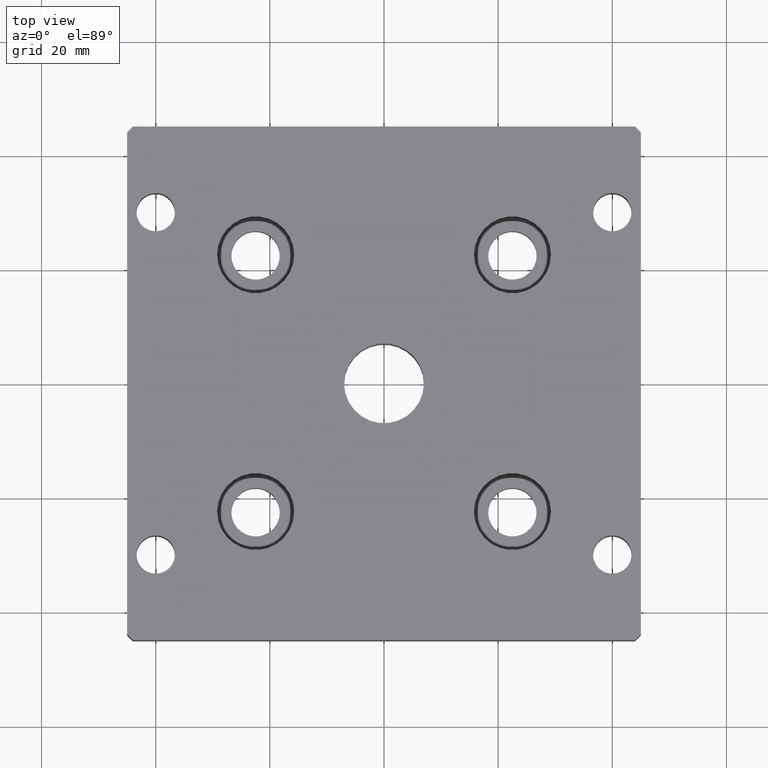
[diagram: clean part render]
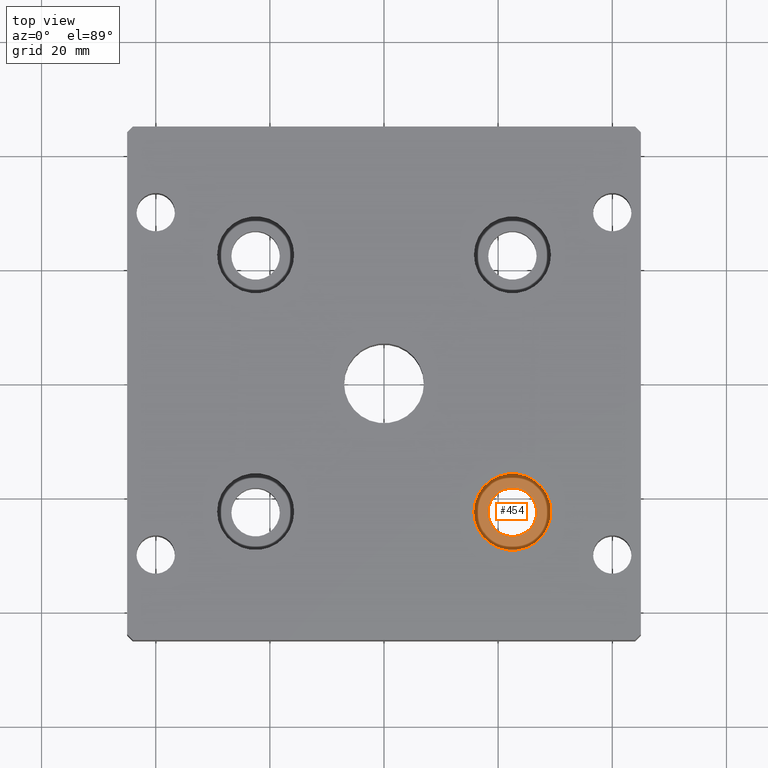
[diagram: same view with one face highlighted and labeled with its STEP entity id]
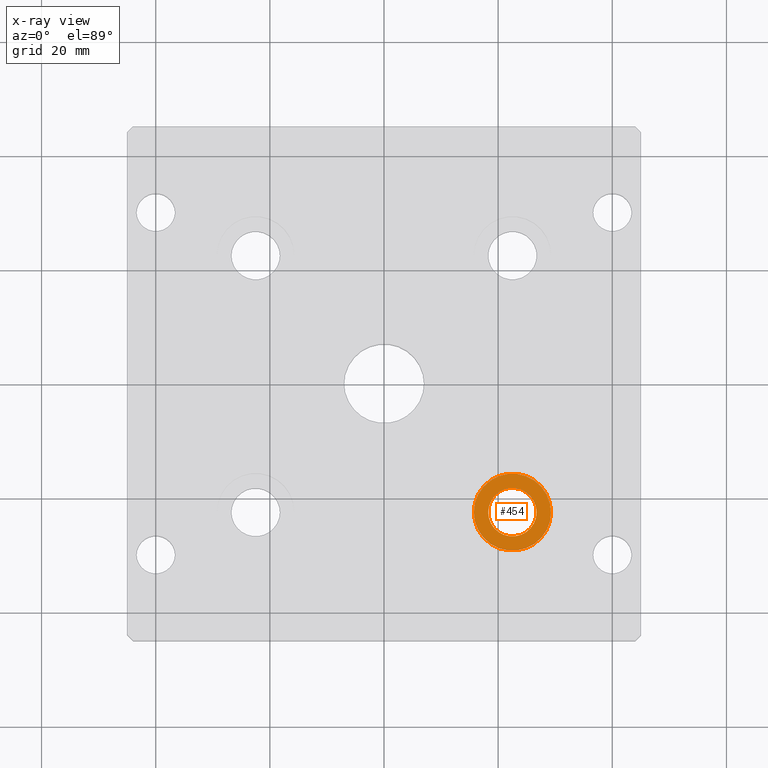
[diagram: x-ray of the same camera — body ghosted, the highlighted face saturated]
A machine part, top view. The second image highlights one B-rep face of the part: STEP entity #454.
The next image is the same camera in x-ray: the body ghosted, the highlighted face saturated — about 0% of this face is hidden behind the body in this view.
In plain terms, the highlighted planar face has unit normal (0, 0, -1).
Its self-contained STEP definition (entity closure, byte-faithful):
#58=FACE_BOUND('',#169,.T.);
#85=CIRCLE('',#505,4.25);
#86=CIRCLE('',#507,6.75);
#111=FACE_OUTER_BOUND('',#168,.T.);
#168=EDGE_LOOP('',(#408));
#169=EDGE_LOOP('',(#409));
#264=VERTEX_POINT('',#753);
#265=VERTEX_POINT('',#756);
#314=EDGE_CURVE('',#264,#264,#85,.T.);
#315=EDGE_CURVE('',#265,#265,#86,.T.);
#408=ORIENTED_EDGE('',*,*,#315,.T.);
#409=ORIENTED_EDGE('',*,*,#314,.F.);
#430=PLANE('',#506);
#454=ADVANCED_FACE('',(#111,#58),#430,.F.);
#505=AXIS2_PLACEMENT_3D('',#754,#628,#629);
#506=AXIS2_PLACEMENT_3D('',#755,#630,#631);
#507=AXIS2_PLACEMENT_3D('',#757,#632,#633);
#628=DIRECTION('center_axis',(0.,0.,1.));
#629=DIRECTION('ref_axis',(1.,0.,0.));
#630=DIRECTION('center_axis',(0.,0.,-1.));
#631=DIRECTION('ref_axis',(-1.,0.,0.));
#632=DIRECTION('center_axis',(0.,0.,1.));
#633=DIRECTION('ref_axis',(1.,0.,0.));
#753=CARTESIAN_POINT('',(18.24999999991,-22.49999999991,-5.5));
#754=CARTESIAN_POINT('Origin',(22.49999999991,-22.49999999991,-5.5));
#755=CARTESIAN_POINT('Origin',(8.99999999990996,-35.99999999991,-5.5));
#756=CARTESIAN_POINT('',(15.74999999991,-22.49999999991,-5.5));
#757=CARTESIAN_POINT('Origin',(22.49999999991,-22.49999999991,-5.5));